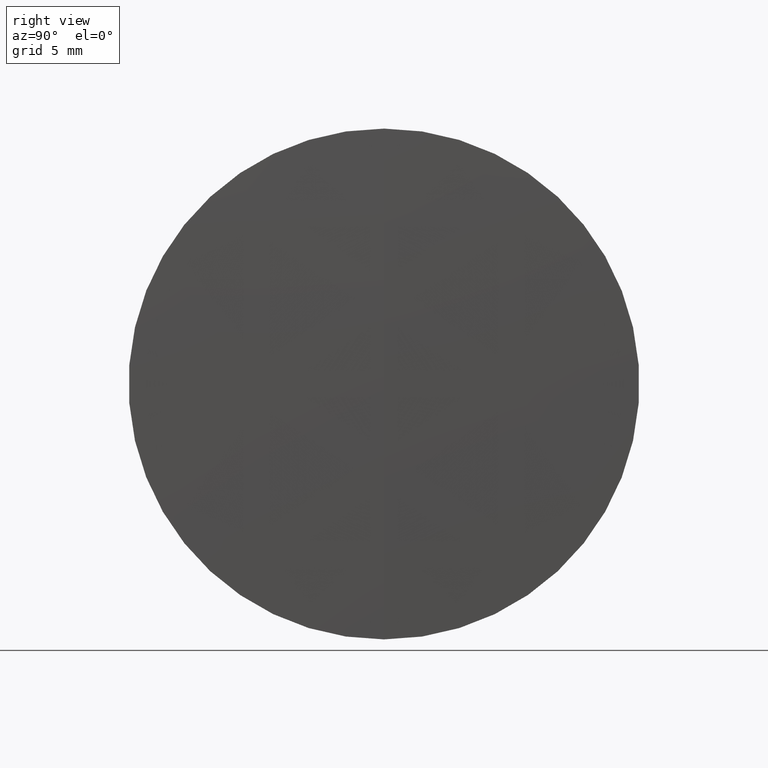
[diagram: clean part render]
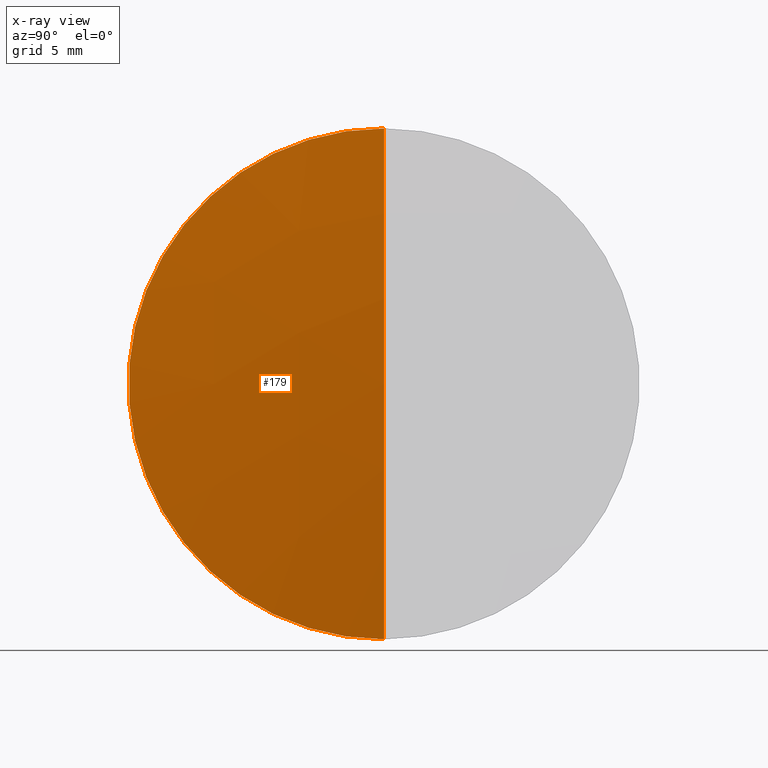
[diagram: x-ray — body ghosted, one internal face saturated and labeled with its STEP entity id]
A machine part, right view, then the same camera in x-ray: the body is ghosted and one INTERNAL B-rep face — a face not visible from any outside direction — is saturated and labeled: STEP entity #179.
In plain terms, the highlighted spherical surface has radius 137.1 mm.
Its self-contained STEP definition (entity closure, byte-faithful):
#6 = CARTESIAN_POINT ( 'NONE',  ( 317.4099599588133700, 1.555301434917135900E-015, -12.69999999999998000 ) ) ;
#8 = CIRCLE ( 'NONE', #24, 12.70000000000004000 ) ;
#12 = DIRECTION ( 'NONE',  ( 0.0000000000000000000, 0.0000000000000000000, -1.000000000000000000 ) ) ;
#16 = DIRECTION ( 'NONE',  ( -0.0000000000000000000, 1.000000000000000000, 1.224646799147353200E-016 ) ) ;
#20 = CARTESIAN_POINT ( 'NONE',  ( 180.8994475431023300, 0.0000000000000000000, -2.331420943353962200E-015 ) ) ;
#24 = AXIS2_PLACEMENT_3D ( 'NONE', #128, #293, #239 ) ;
#27 = CARTESIAN_POINT ( 'NONE',  ( 180.8994475431023300, 0.0000000000000000000, -2.331420943353962200E-015 ) ) ;
#42 = CIRCLE ( 'NONE', #236, 137.0999999999999900 ) ;
#47 = ORIENTED_EDGE ( 'NONE', *, *, #143, .T. ) ;
#53 = VERTEX_POINT ( 'NONE', #94 ) ;
#72 = SPHERICAL_SURFACE ( 'NONE', #99, 137.0999999999999900 ) ;
#74 = DIRECTION ( 'NONE',  ( 0.0000000000000000000, 0.0000000000000000000, 1.000000000000000000 ) ) ;
#77 = DIRECTION ( 'NONE',  ( 0.0000000000000000000, -1.224646799147353200E-016, 1.000000000000000000 ) ) ;
#94 = CARTESIAN_POINT ( 'NONE',  ( 317.4099599588133700, 0.0000000000000000000, 12.69999999999997800 ) ) ;
#99 = AXIS2_PLACEMENT_3D ( 'NONE', #27, #295, #74 ) ;
#108 = CARTESIAN_POINT ( 'NONE',  ( 317.9994475431023500, 0.0000000000000000000, 6.063532864801144400E-015 ) ) ;
#120 = CIRCLE ( 'NONE', #131, 137.0999999999999900 ) ;
#122 = DIRECTION ( 'NONE',  ( 0.0000000000000000000, -1.000000000000000000, 0.0000000000000000000 ) ) ;
#128 = CARTESIAN_POINT ( 'NONE',  ( 317.4099599588133700, 0.0000000000000000000, 0.0000000000000000000 ) ) ;
#131 = AXIS2_PLACEMENT_3D ( 'NONE', #20, #122, #12 ) ;
#143 = EDGE_CURVE ( 'NONE', #343, #53, #8, .T. ) ;
#146 = EDGE_LOOP ( 'NONE', ( #224, #230, #47 ) ) ;
#165 = FACE_OUTER_BOUND ( 'NONE', #146, .T. ) ;
#179 = ADVANCED_FACE ( 'NONE', ( #165 ), #72, .F. ) ;
#198 = VERTEX_POINT ( 'NONE', #108 ) ;
#207 = CARTESIAN_POINT ( 'NONE',  ( 180.8994475431023300, 0.0000000000000000000, -2.331420943353962200E-015 ) ) ;
#221 = EDGE_CURVE ( 'NONE', #198, #343, #42, .T. ) ;
#224 = ORIENTED_EDGE ( 'NONE', *, *, #276, .F. ) ;
#230 = ORIENTED_EDGE ( 'NONE', *, *, #221, .T. ) ;
#236 = AXIS2_PLACEMENT_3D ( 'NONE', #207, #16, #77 ) ;
#239 = DIRECTION ( 'NONE',  ( 0.0000000000000000000, 0.0000000000000000000, 1.000000000000000000 ) ) ;
#276 = EDGE_CURVE ( 'NONE', #198, #53, #120, .T. ) ;
#293 = DIRECTION ( 'NONE',  ( -1.000000000000000000, -0.0000000000000000000, -0.0000000000000000000 ) ) ;
#295 = DIRECTION ( 'NONE',  ( 0.0000000000000000000, 1.000000000000000000, 0.0000000000000000000 ) ) ;
#343 = VERTEX_POINT ( 'NONE', #6 ) ;